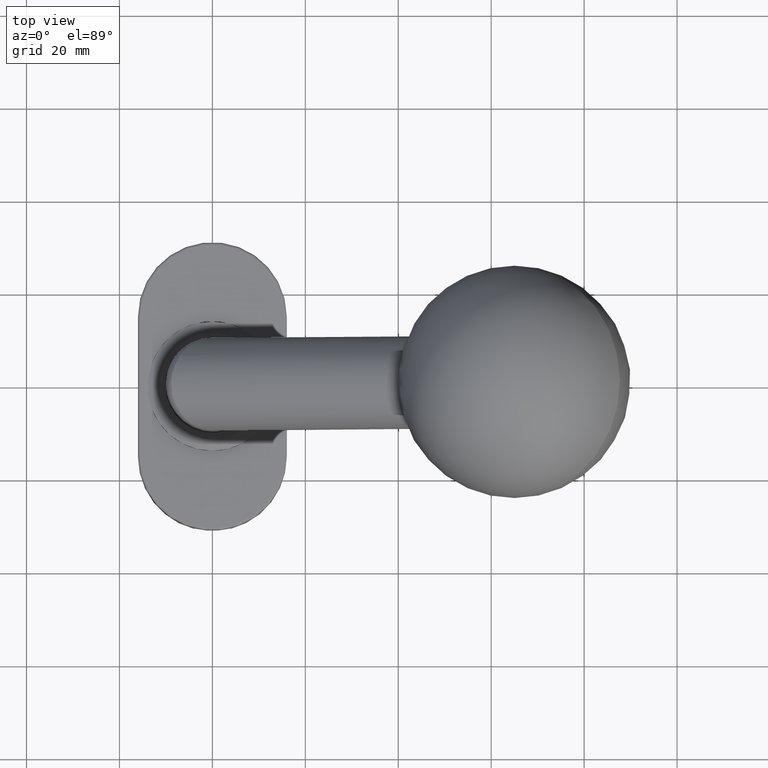
[diagram: clean part render]
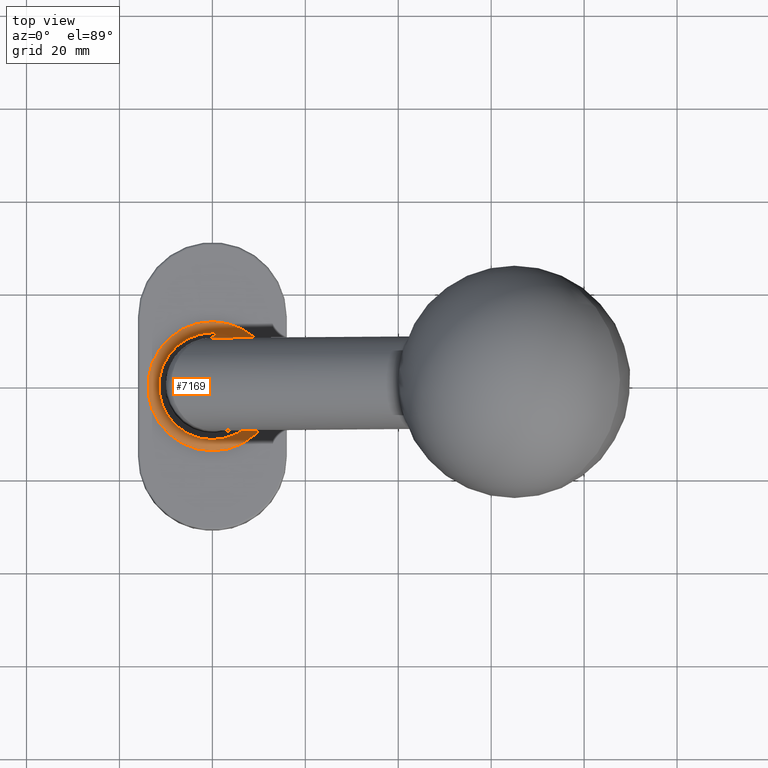
[diagram: same view with one face highlighted and labeled with its STEP entity id]
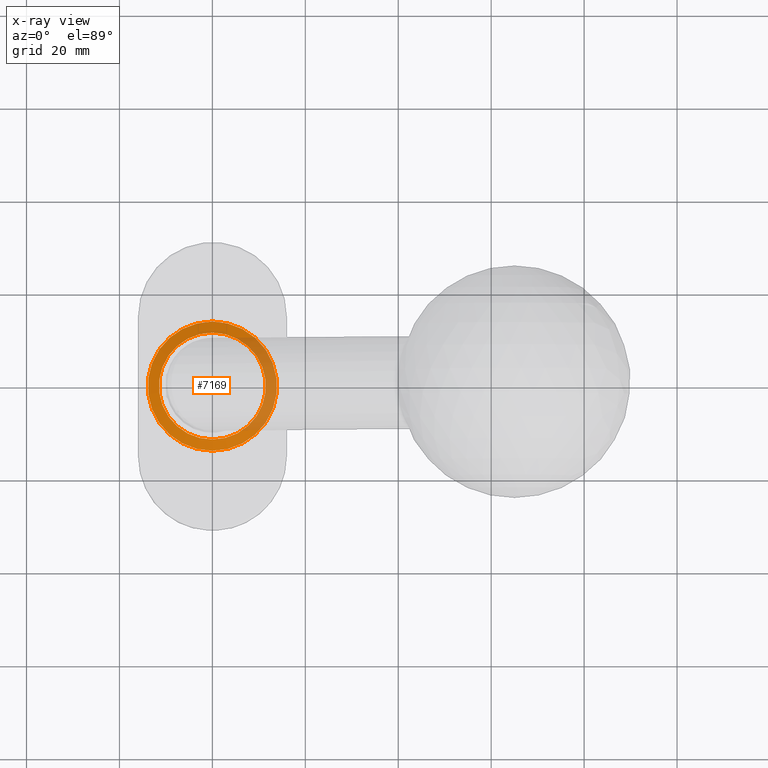
[diagram: x-ray of the same camera — body ghosted, the highlighted face saturated]
A machine part, top view. The second image highlights one B-rep face of the part: STEP entity #7169.
The next image is the same camera in x-ray: the body ghosted, the highlighted face saturated — about 29% of this face is hidden behind the body in this view.
In plain terms, the highlighted conical surface has half-angle 67.38 deg.
Its self-contained STEP definition (entity closure, byte-faithful):
#304 = CARTESIAN_POINT ( 'NONE',  ( 0.0000000000000000000, -2.449293598294704900E-016, 2.000000000000001800 ) ) ;
#443 = DIRECTION ( 'NONE',  ( 0.0000000000000000000, 1.000000000000000000, 1.131341397376178600E-016 ) ) ;
#687 = ORIENTED_EDGE ( 'NONE', *, *, #4545, .F. ) ;
#4545 = EDGE_CURVE ( 'NONE', #18112, #18112, #20630, .T. ) ;
#4550 = EDGE_LOOP ( 'NONE', ( #687 ) ) ;
#5931 = VERTEX_POINT ( 'NONE', #14101 ) ;
#6314 = AXIS2_PLACEMENT_3D ( 'NONE', #304, #7100, #20468 ) ;
#6782 = EDGE_LOOP ( 'NONE', ( #11346 ) ) ;
#6902 = AXIS2_PLACEMENT_3D ( 'NONE', #18631, #17200, #443 ) ;
#7100 = DIRECTION ( 'NONE',  ( -0.0000000000000000000, 1.224646799147353500E-016, -1.000000000000000000 ) ) ;
#7169 = ADVANCED_FACE ( 'NONE', ( #16905, #7647 ), #20082, .T. ) ;
#7647 = FACE_OUTER_BOUND ( 'NONE', #4550, .T. ) ;
#8971 = CARTESIAN_POINT ( 'NONE',  ( 0.0000000000000000000, 13.90000000000000000, 2.000000000000003600 ) ) ;
#9396 = AXIS2_PLACEMENT_3D ( 'NONE', #9567, #9411, #21398 ) ;
#9411 = DIRECTION ( 'NONE',  ( -0.0000000000000000000, 1.224646799147353500E-016, -1.000000000000000000 ) ) ;
#9567 = CARTESIAN_POINT ( 'NONE',  ( 0.0000000000000000000, -2.449293598294704900E-016, 2.000000000000001800 ) ) ;
#10421 = CIRCLE ( 'NONE', #6902, 11.50000000000000000 ) ;
#11346 = ORIENTED_EDGE ( 'NONE', *, *, #21731, .T. ) ;
#14101 = CARTESIAN_POINT ( 'NONE',  ( 0.0000000000000000000, 11.50000000000000000, 3.000000000000004000 ) ) ;
#16905 = FACE_BOUND ( 'NONE', #6782, .T. ) ;
#17200 = DIRECTION ( 'NONE',  ( -0.0000000000000000000, 1.224646799147353500E-016, -1.000000000000000000 ) ) ;
#18112 = VERTEX_POINT ( 'NONE', #8971 ) ;
#18631 = CARTESIAN_POINT ( 'NONE',  ( 0.0000000000000000000, -3.673940397442058900E-016, 3.000000000000002700 ) ) ;
#20082 = CONICAL_SURFACE ( 'NONE', #9396, 13.90000000000000000, 1.176005207095135000 ) ;
#20468 = DIRECTION ( 'NONE',  ( 0.0000000000000000000, 1.000000000000000000, 1.248002500702738800E-016 ) ) ;
#20630 = CIRCLE ( 'NONE', #6314, 13.90000000000000000 ) ;
#21398 = DIRECTION ( 'NONE',  ( 0.0000000000000000000, 1.000000000000000000, 1.248002500702738800E-016 ) ) ;
#21731 = EDGE_CURVE ( 'NONE', #5931, #5931, #10421, .T. ) ;